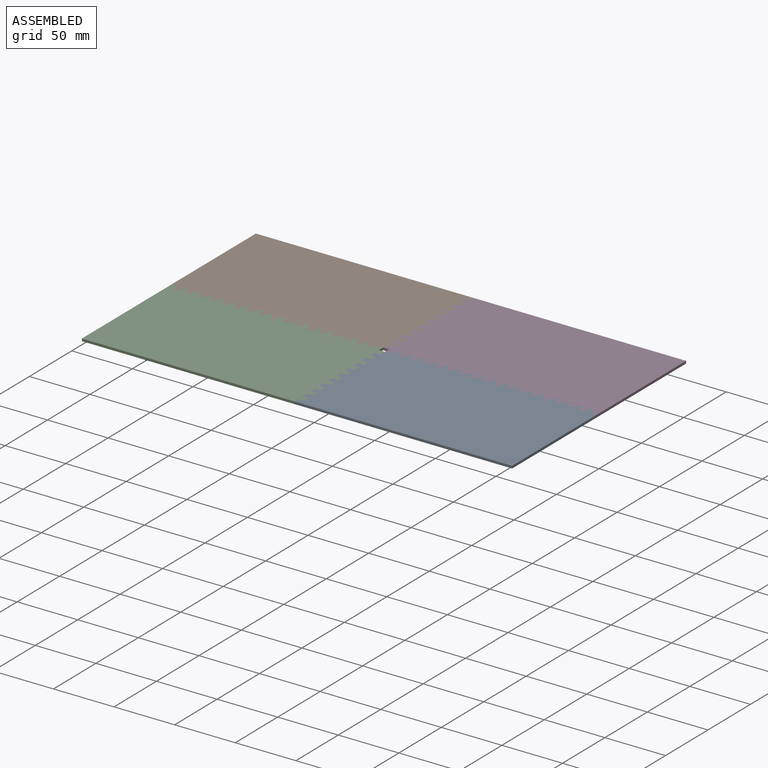
[diagram: assembled view]
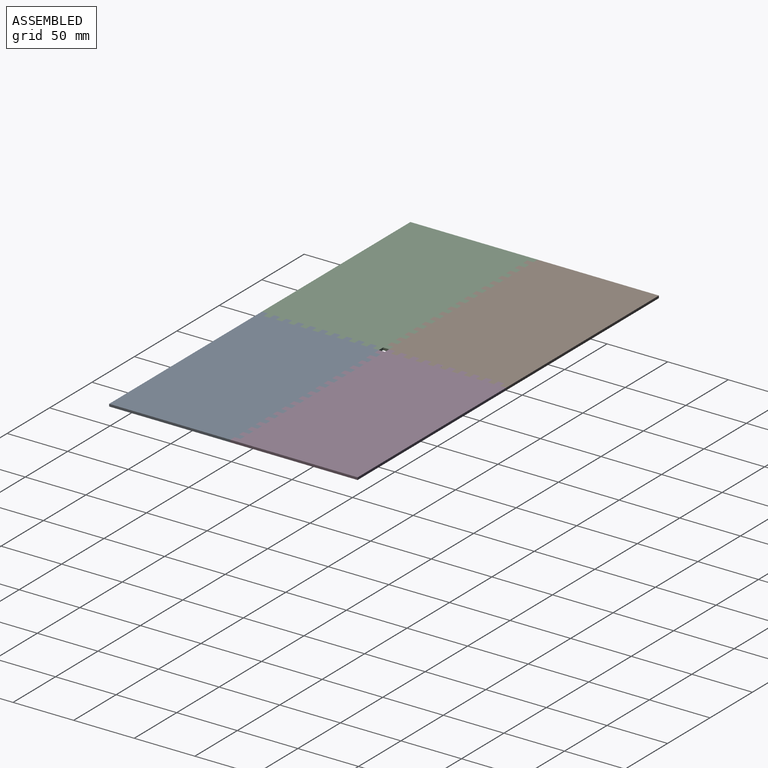
[diagram: assembled view, second angle]
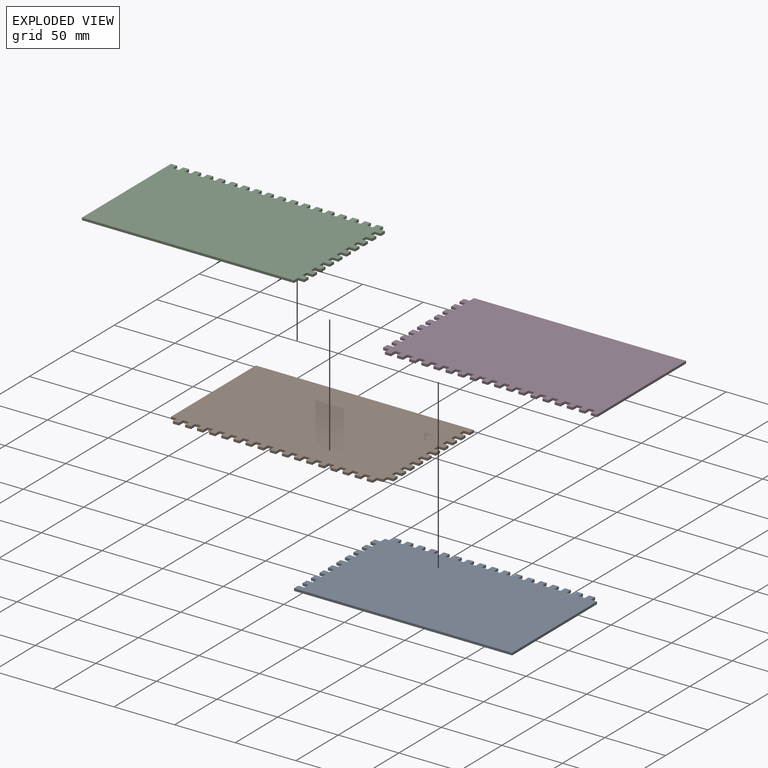
[diagram: exploded view]
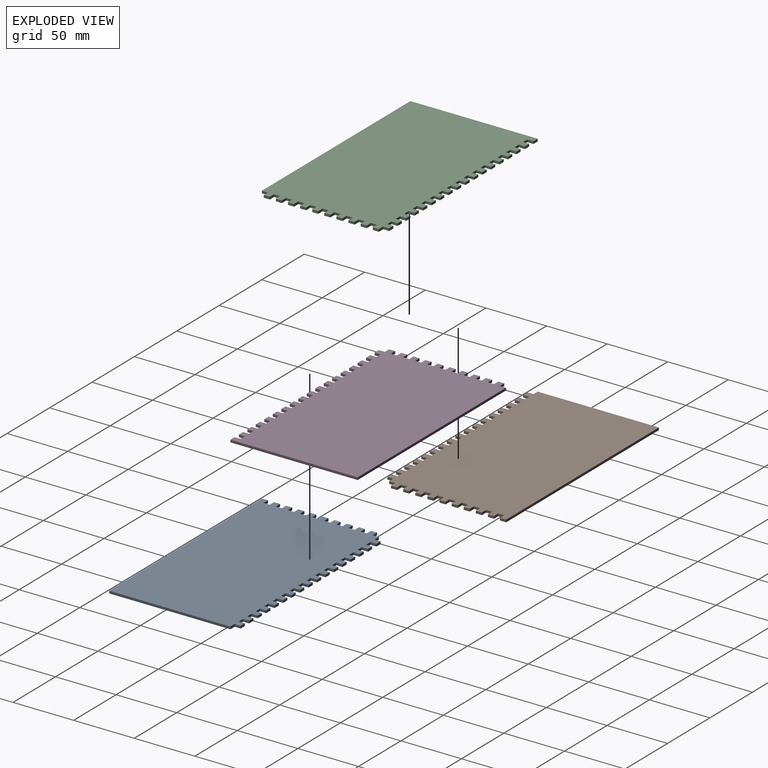
[diagram: exploded view, second angle]
ASSEMBLY  parts=4 mates=3
PART A: 112 faces, bbox 180x105x2 mm
  f0: plane 5x2mm, normal (1,0,0), area 10mm2, adj f1,f109,f110,f111
  f1: plane 5x2mm, normal (0,1,0), area 10mm2, adj f0,f2,f110,f111
  f2: plane 5x2mm, normal (-1,0,0), area 10mm2, adj f1,f3,f110,f111
  f3: plane 5x2mm, normal (0,1,0), area 10mm2, adj f2,f4,f110,f111
  f4: plane 5x2mm, normal (1,0,0), area 10mm2, adj f3,f5,f110,f111
  f5: plane 5x2mm, normal (0,1,0), area 10mm2, adj f4,f6,f110,f111
  f6: plane 5x2mm, normal (-1,0,0), area 10mm2, adj f5,f7,f110,f111
  f7: plane 5x2mm, normal (0,1,0), area 10mm2, adj f6,f8,f110,f111
  f8: plane 5x2mm, normal (1,0,0), area 10mm2, adj f7,f9,f110,f111
  f9: plane 5x2mm, normal (0,1,0), area 10mm2, adj f8,f10,f110,f111
  f10: plane 5x2mm, normal (-1,0,0), area 10mm2, adj f9,f11,f110,f111
  f11: plane 5x2mm, normal (0,1,0), area 10mm2, adj f10,f12,f110,f111
  f12: plane 5x2mm, normal (1,0,0), area 10mm2, adj f11,f13,f110,f111
  f13: plane 5x2mm, normal (0,1,0), area 10mm2, adj f12,f14,f110,f111
  f14: plane 5x2mm, normal (-1,0,0), area 10mm2, adj f13,f15,f110,f111
  f15: plane 5x2mm, normal (0,1,0), area 10mm2, adj f14,f16,f110,f111
  f16: plane 5x2mm, normal (1,0,0), area 10mm2, adj f15,f17,f110,f111
  f17: plane 5x2mm, normal (0,1,0), area 10mm2, adj f16,f18,f110,f111
  f18: plane 5x2mm, normal (-1,0,0), area 10mm2, adj f17,f19,f110,f111
  f19: plane 5x2mm, normal (0,1,0), area 10mm2, adj f18,f20,f110,f111
  f20: plane 5x2mm, normal (1,0,0), area 10mm2, adj f19,f21,f110,f111
  f21: plane 5x2mm, normal (0,1,0), area 10mm2, adj f20,f22,f110,f111
  f22: plane 5x2mm, normal (-1,0,0), area 10mm2, adj f21,f23,f110,f111
  f23: plane 5x2mm, normal (0,1,0), area 10mm2, adj f22,f24,f110,f111
  f24: plane 5x2mm, normal (1,0,0), area 10mm2, adj f23,f25,f110,f111
  f25: plane 5x2mm, normal (0,1,0), area 10mm2, adj f24,f26,f110,f111
  f26: plane 5x2mm, normal (-1,0,0), area 10mm2, adj f25,f27,f110,f111
  f27: plane 5x2mm, normal (0,1,0), area 10mm2, adj f26,f28,f110,f111
  f28: plane 5x2mm, normal (1,0,0), area 10mm2, adj f27,f29,f110,f111
  f29: plane 5x2mm, normal (0,1,0), area 10mm2, adj f28,f30,f110,f111
  f30: plane 5x2mm, normal (-1,0,0), area 10mm2, adj f29,f31,f110,f111
  f31: plane 5x2mm, normal (0,1,0), area 10mm2, adj f30,f32,f110,f111
  f32: plane 5x2mm, normal (1,0,0), area 10mm2, adj f31,f33,f110,f111
  f33: plane 5x2mm, normal (0,1,0), area 10mm2, adj f32,f34,f110,f111
  f34: plane 5x2mm, normal (-1,0,0), area 10mm2, adj f33,f35,f110,f111
  f35: plane 5x2mm, normal (0,1,0), area 10mm2, adj f34,f36,f110,f111
  f36: plane 5x2mm, normal (1,0,0), area 10mm2, adj f35,f37,f110,f111
  f37: plane 5x2mm, normal (0,1,0), area 10mm2, adj f36,f38,f110,f111
  f38: plane 5x2mm, normal (-1,0,0), area 10mm2, adj f37,f39,f110,f111
  f39: plane 5x2mm, normal (0,1,0), area 10mm2, adj f38,f40,f110,f111
  f40: plane 5x2mm, normal (1,0,0), area 10mm2, adj f39,f41,f110,f111
  f41: plane 5x2mm, normal (0,1,0), area 10mm2, adj f40,f42,f110,f111
  f42: plane 5x2mm, normal (-1,0,0), area 10mm2, adj f41,f43,f110,f111
  f43: plane 5x2mm, normal (0,1,0), area 10mm2, adj f42,f44,f110,f111
  f44: plane 5x2mm, normal (1,0,0), area 10mm2, adj f43,f45,f110,f111
  f45: plane 5x2mm, normal (0,1,0), area 10mm2, adj f44,f46,f110,f111
  f46: plane 5x2mm, normal (-1,0,0), area 10mm2, adj f45,f47,f110,f111
  f47: plane 5x2mm, normal (0,1,0), area 10mm2, adj f46,f48,f110,f111
  f48: plane 5x2mm, normal (1,0,0), area 10mm2, adj f47,f49,f110,f111
  f49: plane 5x2mm, normal (0,1,0), area 10mm2, adj f48,f50,f110,f111
  f50: plane 5x2mm, normal (-1,0,0), area 10mm2, adj f49,f51,f110,f111
  f51: plane 5x2mm, normal (0,1,0), area 10mm2, adj f50,f52,f110,f111
  f52: plane 100x2mm, normal (-1,0,0), area 200mm2, adj f51,f53,f110,f111
  f53: plane 180x2mm, normal (0,-1,0), area 360mm2, adj f52,f54,f110,f111
  f54: plane 5x2mm, normal (1,0,0), area 10mm2, adj f53,f55,f110,f111
  f55: plane 5x2mm, normal (0,1,0), area 10mm2, adj f54,f56,f110,f111
  f56: plane 5x2mm, normal (1,0,0), area 10mm2, adj f55,f57,f110,f111
  f57: plane 5x2mm, normal (0,-1,0), area 10mm2, adj f56,f58,f110,f111
  f58: plane 5x2mm, normal (1,0,0), area 10mm2, adj f57,f59,f110,f111
  f59: plane 5x2mm, normal (0,1,0), area 10mm2, adj f58,f60,f110,f111
  f60: plane 5x2mm, normal (1,0,0), area 10mm2, adj f59,f61,f110,f111
  f61: plane 5x2mm, normal (0,-1,0), area 10mm2, adj f60,f62,f110,f111
  f62: plane 5x2mm, normal (1,0,0), area 10mm2, adj f61,f63,f110,f111
  f63: plane 5x2mm, normal (0,1,0), area 10mm2, adj f62,f64,f110,f111
  f64: plane 5x2mm, normal (1,0,0), area 10mm2, adj f63,f65,f110,f111
  f65: plane 5x2mm, normal (0,-1,0), area 10mm2, adj f64,f66,f110,f111
  f66: plane 5x2mm, normal (1,0,0), area 10mm2, adj f65,f67,f110,f111
  f67: plane 5x2mm, normal (0,1,0), area 10mm2, adj f66,f68,f110,f111
  f68: plane 5x2mm, normal (1,0,0), area 10mm2, adj f67,f69,f110,f111
  f69: plane 5x2mm, normal (0,-1,0), area 10mm2, adj f68,f70,f110,f111
  f70: plane 5x2mm, normal (1,0,0), area 10mm2, adj f69,f71,f110,f111
  f71: plane 5x2mm, normal (0,1,0), area 10mm2, adj f70,f72,f110,f111
  f72: plane 5x2mm, normal (1,0,0), area 10mm2, adj f71,f73,f110,f111
  f73: plane 5x2mm, normal (0,-1,0), area 10mm2, adj f72,f74,f110,f111
  f74: plane 5x2mm, normal (1,0,0), area 10mm2, adj f73,f75,f110,f111
  f75: plane 5x2mm, normal (0,1,0), area 10mm2, adj f74,f76,f110,f111
  f76: plane 5x2mm, normal (1,0,0), area 10mm2, adj f75,f77,f110,f111
  f77: plane 5x2mm, normal (0,-1,0), area 10mm2, adj f76,f78,f110,f111
  f78: plane 5x2mm, normal (1,0,0), area 10mm2, adj f77,f79,f110,f111
  f79: plane 5x2mm, normal (0,1,0), area 10mm2, adj f78,f80,f110,f111
  f80: plane 5x2mm, normal (1,0,0), area 10mm2, adj f79,f81,f110,f111
  f81: plane 5x2mm, normal (0,-1,0), area 10mm2, adj f80,f82,f110,f111
  f82: plane 5x2mm, normal (1,0,0), area 10mm2, adj f81,f83,f110,f111
  f83: plane 5x2mm, normal (0,1,0), area 10mm2, adj f82,f84,f110,f111
  f84: plane 5x2mm, normal (1,0,0), area 10mm2, adj f83,f85,f110,f111
  f85: plane 5x2mm, normal (0,-1,0), area 10mm2, adj f84,f86,f110,f111
  f86: plane 5x2mm, normal (1,0,0), area 10mm2, adj f85,f87,f110,f111
  f87: plane 5x2mm, normal (0,1,0), area 10mm2, adj f86,f88,f110,f111
  f88: plane 5x2mm, normal (1,0,0), area 10mm2, adj f87,f89,f110,f111
  f89: plane 5x2mm, normal (0,-1,0), area 10mm2, adj f88,f90,f110,f111
  f90: plane 5x2mm, normal (1,0,0), area 10mm2, adj f89,f91,f110,f111
  f91: plane 5x2mm, normal (0,1,0), area 10mm2, adj f90,f92,f110,f111
  f92: plane 5x2mm, normal (1,0,0), area 10mm2, adj f91,f93,f110,f111
  f93: plane 5x2mm, normal (0,1,0), area 10mm2, adj f92,f94,f110,f111
  f94: plane 5x2mm, normal (1,0,0), area 10mm2, adj f93,f95,f110,f111
  f95: plane 5x2mm, normal (0,1,0), area 10mm2, adj f94,f96,f110,f111
  f96: plane 5x2mm, normal (-1,0,0), area 10mm2, adj f95,f97,f110,f111
  f97: plane 5x2mm, normal (0,1,0), area 10mm2, adj f96,f98,f110,f111
  f98: plane 5x2mm, normal (1,0,0), area 10mm2, adj f97,f99,f110,f111
  f99: plane 5x2mm, normal (0,1,0), area 10mm2, adj f98,f100,f110,f111
  f100: plane 5x2mm, normal (-1,0,0), area 10mm2, adj f99,f101,f110,f111
  f101: plane 5x2mm, normal (0,1,0), area 10mm2, adj f100,f102,f110,f111
  f102: plane 5x2mm, normal (1,0,0), area 10mm2, adj f101,f103,f110,f111
  f103: plane 5x2mm, normal (0,1,0), area 10mm2, adj f102,f104,f110,f111
  f104: plane 5x2mm, normal (-1,0,0), area 10mm2, adj f103,f105,f110,f111
  f105: plane 5x2mm, normal (0,1,0), area 10mm2, adj f104,f106,f110,f111
  f106: plane 5x2mm, normal (1,0,0), area 10mm2, adj f105,f107,f110,f111
  f107: plane 5x2mm, normal (0,1,0), area 10mm2, adj f106,f108,f110,f111
  f108: plane 5x2mm, normal (-1,0,0), area 10mm2, adj f107,f109,f110,f111
  f109: plane 5x2mm, normal (0,1,0), area 10mm2, adj f0,f108,f110,f111
  f110: plane 180x105mm, normal (0,0,1), area 18175mm2, adj f0,f1,f2,f3,f4,f5,f6,f7
  f111: plane 180x105mm, normal (0,0,-1), area 18175mm2, adj f0,f1,f2,f3,f4,f5,f6,f7
PART B: same geometry as A
PART C: 114 faces, bbox 180x105x2 mm
  f0: plane 5x2mm, normal (0,1,0), area 10mm2, adj f1,f111,f112,f113
  f1: plane 5x2mm, normal (1,0,0), area 10mm2, adj f0,f2,f112,f113
  f2: plane 5x2mm, normal (0,1,0), area 10mm2, adj f1,f3,f112,f113
  f3: plane 5x2mm, normal (-1,0,0), area 10mm2, adj f2,f4,f112,f113
  f4: plane 5x2mm, normal (0,1,0), area 10mm2, adj f3,f5,f112,f113
  f5: plane 5x2mm, normal (1,0,0), area 10mm2, adj f4,f6,f112,f113
  f6: plane 5x2mm, normal (0,1,0), area 10mm2, adj f5,f7,f112,f113
  f7: plane 5x2mm, normal (-1,0,0), area 10mm2, adj f6,f8,f112,f113
  f8: plane 5x2mm, normal (0,1,0), area 10mm2, adj f7,f9,f112,f113
  f9: plane 5x2mm, normal (1,0,0), area 10mm2, adj f8,f10,f112,f113
  f10: plane 5x2mm, normal (0,1,0), area 10mm2, adj f9,f11,f112,f113
  f11: plane 5x2mm, normal (-1,0,0), area 10mm2, adj f10,f12,f112,f113
  f12: plane 5x2mm, normal (0,1,0), area 10mm2, adj f11,f13,f112,f113
  f13: plane 5x2mm, normal (1,0,0), area 10mm2, adj f12,f14,f112,f113
  f14: plane 5x2mm, normal (0,1,0), area 10mm2, adj f13,f15,f112,f113
  f15: plane 5x2mm, normal (-1,0,0), area 10mm2, adj f14,f16,f112,f113
  f16: plane 5x2mm, normal (0,1,0), area 10mm2, adj f15,f17,f112,f113
  f17: plane 5x2mm, normal (1,0,0), area 10mm2, adj f16,f18,f112,f113
  f18: plane 5x2mm, normal (0,1,0), area 10mm2, adj f17,f19,f112,f113
  f19: plane 5x2mm, normal (-1,0,0), area 10mm2, adj f18,f20,f112,f113
  f20: plane 5x2mm, normal (0,1,0), area 10mm2, adj f19,f21,f112,f113
  f21: plane 5x2mm, normal (1,0,0), area 10mm2, adj f20,f22,f112,f113
  f22: plane 5x2mm, normal (0,1,0), area 10mm2, adj f21,f23,f112,f113
  f23: plane 5x2mm, normal (-1,0,0), area 10mm2, adj f22,f24,f112,f113
  f24: plane 5x2mm, normal (0,1,0), area 10mm2, adj f23,f25,f112,f113
  f25: plane 5x2mm, normal (1,0,0), area 10mm2, adj f24,f26,f112,f113
  f26: plane 5x2mm, normal (0,1,0), area 10mm2, adj f25,f27,f112,f113
  f27: plane 5x2mm, normal (-1,0,0), area 10mm2, adj f26,f28,f112,f113
  f28: plane 5x2mm, normal (0,1,0), area 10mm2, adj f27,f29,f112,f113
  f29: plane 5x2mm, normal (1,0,0), area 10mm2, adj f28,f30,f112,f113
  f30: plane 5x2mm, normal (0,1,0), area 10mm2, adj f29,f31,f112,f113
  f31: plane 5x2mm, normal (-1,0,0), area 10mm2, adj f30,f32,f112,f113
  f32: plane 5x2mm, normal (0,1,0), area 10mm2, adj f31,f33,f112,f113
  f33: plane 5x2mm, normal (1,0,0), area 10mm2, adj f32,f34,f112,f113
  f34: plane 5x2mm, normal (0,1,0), area 10mm2, adj f33,f35,f112,f113
  f35: plane 5x2mm, normal (-1,0,0), area 10mm2, adj f34,f36,f112,f113
  f36: plane 5x2mm, normal (0,1,0), area 10mm2, adj f35,f37,f112,f113
  f37: plane 5x2mm, normal (1,0,0), area 10mm2, adj f36,f38,f112,f113
  f38: plane 5x2mm, normal (0,1,0), area 10mm2, adj f37,f39,f112,f113
  f39: plane 5x2mm, normal (-1,0,0), area 10mm2, adj f38,f40,f112,f113
  f40: plane 5x2mm, normal (0,1,0), area 10mm2, adj f39,f41,f112,f113
  f41: plane 5x2mm, normal (1,0,0), area 10mm2, adj f40,f42,f112,f113
  f42: plane 5x2mm, normal (0,1,0), area 10mm2, adj f41,f43,f112,f113
  f43: plane 5x2mm, normal (-1,0,0), area 10mm2, adj f42,f44,f112,f113
  f44: plane 5x2mm, normal (0,1,0), area 10mm2, adj f43,f45,f112,f113
  f45: plane 5x2mm, normal (1,0,0), area 10mm2, adj f44,f46,f112,f113
  f46: plane 5x2mm, normal (0,1,0), area 10mm2, adj f45,f47,f112,f113
  f47: plane 5x2mm, normal (-1,0,0), area 10mm2, adj f46,f48,f112,f113
  f48: plane 5x2mm, normal (0,1,0), area 10mm2, adj f47,f49,f112,f113
  f49: plane 5x2mm, normal (1,0,0), area 10mm2, adj f48,f50,f112,f113
  f50: plane 5x2mm, normal (0,1,0), area 10mm2, adj f49,f51,f112,f113
  f51: plane 5x2mm, normal (-1,0,0), area 10mm2, adj f50,f52,f112,f113
  f52: plane 5x2mm, normal (0,1,0), area 10mm2, adj f51,f53,f112,f113
  f53: plane 5x2mm, normal (1,0,0), area 10mm2, adj f52,f54,f112,f113
  f54: plane 5x2mm, normal (0,1,0), area 10mm2, adj f53,f55,f112,f113
  f55: plane 5x2mm, normal (-1,0,0), area 10mm2, adj f54,f56,f112,f113
  f56: plane 5x2mm, normal (0,1,0), area 10mm2, adj f55,f57,f112,f113
  f57: plane 5x2mm, normal (1,0,0), area 10mm2, adj f56,f58,f112,f113
  f58: plane 5x2mm, normal (0,1,0), area 10mm2, adj f57,f59,f112,f113
  f59: plane 5x2mm, normal (-1,0,0), area 10mm2, adj f58,f60,f112,f113
  f60: plane 5x2mm, normal (0,1,0), area 10mm2, adj f59,f61,f112,f113
  f61: plane 5x2mm, normal (1,0,0), area 10mm2, adj f60,f62,f112,f113
  f62: plane 5x2mm, normal (0,1,0), area 10mm2, adj f61,f63,f112,f113
  f63: plane 5x2mm, normal (-1,0,0), area 10mm2, adj f62,f64,f112,f113
  f64: plane 5x2mm, normal (0,1,0), area 10mm2, adj f63,f65,f112,f113
  f65: plane 5x2mm, normal (1,0,0), area 10mm2, adj f64,f66,f112,f113
  f66: plane 5x2mm, normal (0,1,0), area 10mm2, adj f65,f67,f112,f113
  f67: plane 5x2mm, normal (-1,0,0), area 10mm2, adj f66,f68,f112,f113
  f68: plane 5x2mm, normal (0,1,0), area 10mm2, adj f67,f69,f112,f113
  f69: plane 5x2mm, normal (1,0,0), area 10mm2, adj f68,f70,f112,f113
  f70: plane 5x2mm, normal (0,1,0), area 10mm2, adj f69,f71,f112,f113
  f71: plane 105x2mm, normal (-1,0,0), area 210mm2, adj f70,f72,f112,f113
  f72: plane 175x2mm, normal (0,-1,0), area 350mm2, adj f71,f73,f112,f113
  f73: plane 5x2mm, normal (1,0,0), area 10mm2, adj f72,f74,f112,f113
  f74: plane 5x2mm, normal (0,-1,0), area 10mm2, adj f73,f75,f112,f113
  f75: plane 5x2mm, normal (1,0,0), area 10mm2, adj f74,f76,f112,f113
  f76: plane 5x2mm, normal (0,1,0), area 10mm2, adj f75,f77,f112,f113
  f77: plane 5x2mm, normal (1,0,0), area 10mm2, adj f76,f78,f112,f113
  f78: plane 5x2mm, normal (0,-1,0), area 10mm2, adj f77,f79,f112,f113
  f79: plane 5x2mm, normal (1,0,0), area 10mm2, adj f78,f80,f112,f113
  f80: plane 5x2mm, normal (0,1,0), area 10mm2, adj f79,f81,f112,f113
  f81: plane 5x2mm, normal (1,0,0), area 10mm2, adj f80,f82,f112,f113
  f82: plane 5x2mm, normal (0,-1,0), area 10mm2, adj f81,f83,f112,f113
  f83: plane 5x2mm, normal (1,0,0), area 10mm2, adj f82,f84,f112,f113
  f84: plane 5x2mm, normal (0,1,0), area 10mm2, adj f83,f85,f112,f113
  f85: plane 5x2mm, normal (1,0,0), area 10mm2, adj f84,f86,f112,f113
  f86: plane 5x2mm, normal (0,-1,0), area 10mm2, adj f85,f87,f112,f113
  f87: plane 5x2mm, normal (1,0,0), area 10mm2, adj f86,f88,f112,f113
  f88: plane 5x2mm, normal (0,1,0), area 10mm2, adj f87,f89,f112,f113
  f89: plane 5x2mm, normal (1,0,0), area 10mm2, adj f88,f90,f112,f113
  f90: plane 5x2mm, normal (0,-1,0), area 10mm2, adj f89,f91,f112,f113
  f91: plane 5x2mm, normal (1,0,0), area 10mm2, adj f90,f92,f112,f113
  f92: plane 5x2mm, normal (0,1,0), area 10mm2, adj f91,f93,f112,f113
  f93: plane 5x2mm, normal (1,0,0), area 10mm2, adj f92,f94,f112,f113
  f94: plane 5x2mm, normal (0,-1,0), area 10mm2, adj f93,f95,f112,f113
  f95: plane 5x2mm, normal (1,0,0), area 10mm2, adj f94,f96,f112,f113
  f96: plane 5x2mm, normal (0,1,0), area 10mm2, adj f95,f97,f112,f113
  f97: plane 5x2mm, normal (1,0,0), area 10mm2, adj f96,f98,f112,f113
  f98: plane 5x2mm, normal (0,-1,0), area 10mm2, adj f97,f99,f112,f113
  f99: plane 5x2mm, normal (1,0,0), area 10mm2, adj f98,f100,f112,f113
  f100: plane 5x2mm, normal (0,1,0), area 10mm2, adj f99,f101,f112,f113
  f101: plane 5x2mm, normal (1,0,0), area 10mm2, adj f100,f102,f112,f113
  f102: plane 5x2mm, normal (0,-1,0), area 10mm2, adj f101,f103,f112,f113
  f103: plane 5x2mm, normal (1,0,0), area 10mm2, adj f102,f104,f112,f113
  f104: plane 5x2mm, normal (0,1,0), area 10mm2, adj f103,f105,f112,f113
  f105: plane 5x2mm, normal (1,0,0), area 10mm2, adj f104,f106,f112,f113
  f106: plane 5x2mm, normal (0,-1,0), area 10mm2, adj f105,f107,f112,f113
  f107: plane 5x2mm, normal (1,0,0), area 10mm2, adj f106,f108,f112,f113
  f108: plane 5x2mm, normal (0,1,0), area 10mm2, adj f107,f109,f112,f113
  f109: plane 5x2mm, normal (1,0,0), area 10mm2, adj f108,f110,f112,f113
  f110: plane 5x2mm, normal (0,-1,0), area 10mm2, adj f109,f111,f112,f113
  f111: plane 5x2mm, normal (1,0,0), area 10mm2, adj f0,f110,f112,f113
  f112: plane 180x105mm, normal (0,0,1), area 18200mm2, adj f0,f1,f2,f3,f4,f5,f6,f7
  f113: plane 180x105mm, normal (0,0,-1), area 18200mm2, adj f0,f1,f2,f3,f4,f5,f6,f7
PART D: same geometry as C
PLACE A rot(axis=(0,1,0),180deg) t=(0.84,-35.63,-3.83)mm
PLACE B rot(axis=(-1,0,0),180deg) t=(5.84,-37.63,-3.83)mm
PLACE C t=(5.84,-35.63,-5.83)mm
PLACE D rot(axis=(0,0,1),180deg) t=(0.84,-37.63,-5.83)mm
MATE fastened B.f111 <-> D.f112  axis (0,0,1) through (5.84,63.37,-3.83)mm
MATE fastened A.f111 <-> C.f112  axis (0,0,1) through (0.84,-136.63,-3.83)mm
MATE fastened D.f112 <-> A.f111  axis (0,0,1) through (178.34,-39.13,-3.83)mm
